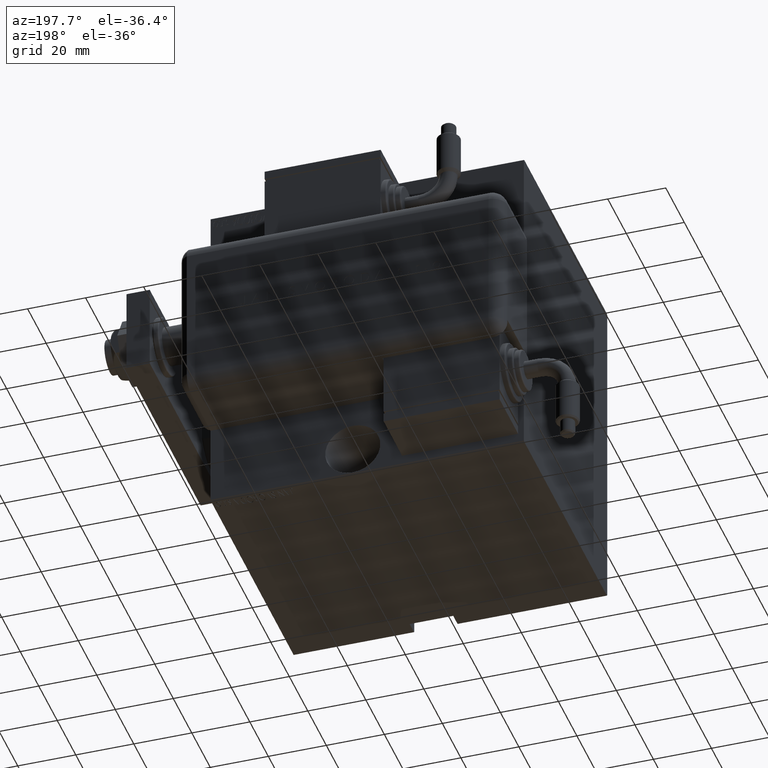
[diagram: clean part render]
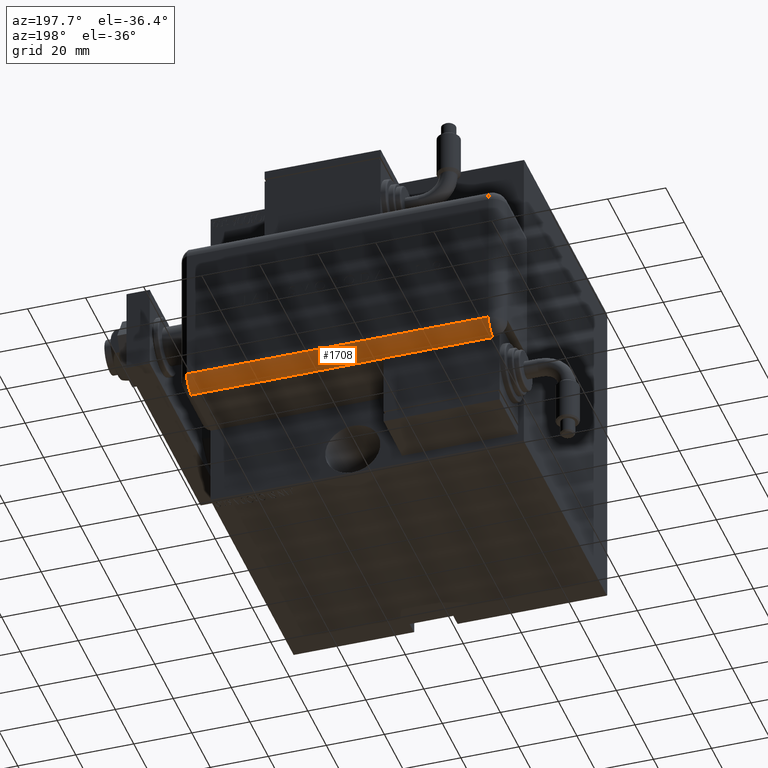
[diagram: same view with one face highlighted and labeled with its STEP entity id]
A machine part, auxiliary view. The second image highlights one B-rep face of the part: STEP entity #1708.
In plain terms, the highlighted cylindrical surface (edge-blend (fillet) strip) has radius 5 mm, axis along (-1, -0, -0).
Its self-contained STEP definition (entity closure, byte-faithful):
#1708 = ADVANCED_FACE ( 'NONE', ( #45984 ), #50560, .T. ) ;
#4319 = VECTOR ( 'NONE', #27083, 1000.000000000000000 ) ;
#4869 = DIRECTION ( 'NONE',  ( 1.000000000000000000, -6.383782391594648845E-14, 0.000000000000000000 ) ) ;
#5001 = CARTESIAN_POINT ( 'NONE',  ( 23.99999999999999289, 20.79999999999998295, 109.0000000000000000 ) ) ;
#7685 = CARTESIAN_POINT ( 'NONE',  ( 28.99999999999999645, 20.79999999999998295, 109.0000000000000000 ) ) ;
#9107 = DIRECTION ( 'NONE',  ( -1.000000000000000000, 0.000000000000000000, 0.000000000000000000 ) ) ;
#9783 = DIRECTION ( 'NONE',  ( 0.000000000000000000, 0.000000000000000000, -1.000000000000000000 ) ) ;
#9958 = EDGE_LOOP ( 'NONE', ( #27198, #27730, #43947, #51855, #13122, #16210 ) ) ;
#10158 = AXIS2_PLACEMENT_3D ( 'NONE', #22819, #23124, #9107 ) ;
#12496 = VERTEX_POINT ( 'NONE', #51082 ) ;
#13122 = ORIENTED_EDGE ( 'NONE', *, *, #34873, .F. ) ;
#13557 = CARTESIAN_POINT ( 'NONE',  ( 28.99999999999999645, 20.79999999999998295, 43.00000000000000000 ) ) ;
#15360 = EDGE_CURVE ( 'NONE', #12496, #17089, #40486, .T. ) ;
#15433 = AXIS2_PLACEMENT_3D ( 'NONE', #18245, #31668, #4869 ) ;
#16210 = ORIENTED_EDGE ( 'NONE', *, *, #31076, .F. ) ;
#16459 = EDGE_CURVE ( 'NONE', #46244, #17664, #56075, .T. ) ;
#17089 = VERTEX_POINT ( 'NONE', #23857 ) ;
#17664 = VERTEX_POINT ( 'NONE', #32244 ) ;
#18245 = CARTESIAN_POINT ( 'NONE',  ( 23.99999999999999289, 20.79999999999998295, 43.00000000000000000 ) ) ;
#18379 = CARTESIAN_POINT ( 'NONE',  ( 28.99999999999999645, 20.79999999999998295, 109.0000000000000000 ) ) ;
#22819 = CARTESIAN_POINT ( 'NONE',  ( 23.99999999999999289, 20.79999999999998295, 109.0000000000000000 ) ) ;
#23124 = DIRECTION ( 'NONE',  ( 0.000000000000000000, 0.000000000000000000, -1.000000000000000000 ) ) ;
#23857 = CARTESIAN_POINT ( 'NONE',  ( 28.99599839871871154, 20.99999999999999289, 43.00000000000000000 ) ) ;
#24182 = LINE ( 'NONE', #7685, #36824 ) ;
#24211 = CIRCLE ( 'NONE', #42716, 5.000000000000000888 ) ;
#27083 = DIRECTION ( 'NONE',  ( -0.000000000000000000, -0.000000000000000000, 1.000000000000000000 ) ) ;
#27198 = ORIENTED_EDGE ( 'NONE', *, *, #57979, .F. ) ;
#27730 = ORIENTED_EDGE ( 'NONE', *, *, #15360, .F. ) ;
#28513 = DIRECTION ( 'NONE',  ( -0.000000000000000000, -0.000000000000000000, 1.000000000000000000 ) ) ;
#30717 = EDGE_CURVE ( 'NONE', #12496, #17664, #32900, .T. ) ;
#31076 = EDGE_CURVE ( 'NONE', #41964, #34759, #24182, .T. ) ;
#31668 = DIRECTION ( 'NONE',  ( -0.000000000000000000, 0.000000000000000000, -1.000000000000000000 ) ) ;
#32244 = CARTESIAN_POINT ( 'NONE',  ( 23.99999999999999289, 25.79999999999998295, 5.000000000000004441 ) ) ;
#32900 = CIRCLE ( 'NONE', #41702, 5.000000000000000888 ) ;
#34759 = VERTEX_POINT ( 'NONE', #18379 ) ;
#34873 = EDGE_CURVE ( 'NONE', #34759, #46244, #24211, .T. ) ;
#36824 = VECTOR ( 'NONE', #53399, 1000.000000000000000 ) ;
#37969 = DIRECTION ( 'NONE',  ( -1.000000000000000000, 0.000000000000000000, 0.000000000000000000 ) ) ;
#38870 = CARTESIAN_POINT ( 'NONE',  ( 23.99999999999999289, 20.79999999999998295, 5.000000000000004441 ) ) ;
#40486 = LINE ( 'NONE', #59049, #4319 ) ;
#41313 = VECTOR ( 'NONE', #9783, 1000.000000000000000 ) ;
#41702 = AXIS2_PLACEMENT_3D ( 'NONE', #38870, #28513, #37969 ) ;
#41964 = VERTEX_POINT ( 'NONE', #13557 ) ;
#42716 = AXIS2_PLACEMENT_3D ( 'NONE', #5001, #42785, #55850 ) ;
#42785 = DIRECTION ( 'NONE',  ( -0.000000000000000000, -0.000000000000000000, 1.000000000000000000 ) ) ;
#43947 = ORIENTED_EDGE ( 'NONE', *, *, #30717, .T. ) ;
#45984 = FACE_OUTER_BOUND ( 'NONE', #9958, .T. ) ;
#46244 = VERTEX_POINT ( 'NONE', #53532 ) ;
#50560 = CYLINDRICAL_SURFACE ( 'NONE', #10158, 5.000000000000000888 ) ;
#51082 = CARTESIAN_POINT ( 'NONE',  ( 28.99599839871871154, 21.00000000000000000, 5.000000000000004441 ) ) ;
#51855 = ORIENTED_EDGE ( 'NONE', *, *, #16459, .F. ) ;
#53237 = CARTESIAN_POINT ( 'NONE',  ( 23.99999999999999289, 25.79999999999998295, 109.0000000000000000 ) ) ;
#53399 = DIRECTION ( 'NONE',  ( -0.000000000000000000, -0.000000000000000000, 1.000000000000000000 ) ) ;
#53532 = CARTESIAN_POINT ( 'NONE',  ( 23.99999999999999289, 25.79999999999998295, 109.0000000000000000 ) ) ;
#55850 = DIRECTION ( 'NONE',  ( -1.000000000000000000, 0.000000000000000000, 0.000000000000000000 ) ) ;
#56075 = LINE ( 'NONE', #53237, #41313 ) ;
#57979 = EDGE_CURVE ( 'NONE', #17089, #41964, #60164, .T. ) ;
#59049 = CARTESIAN_POINT ( 'NONE',  ( 28.99599839871871154, 20.99999999999998224, 109.0000000000000000 ) ) ;
#60164 = CIRCLE ( 'NONE', #15433, 5.000000000000000888 ) ;